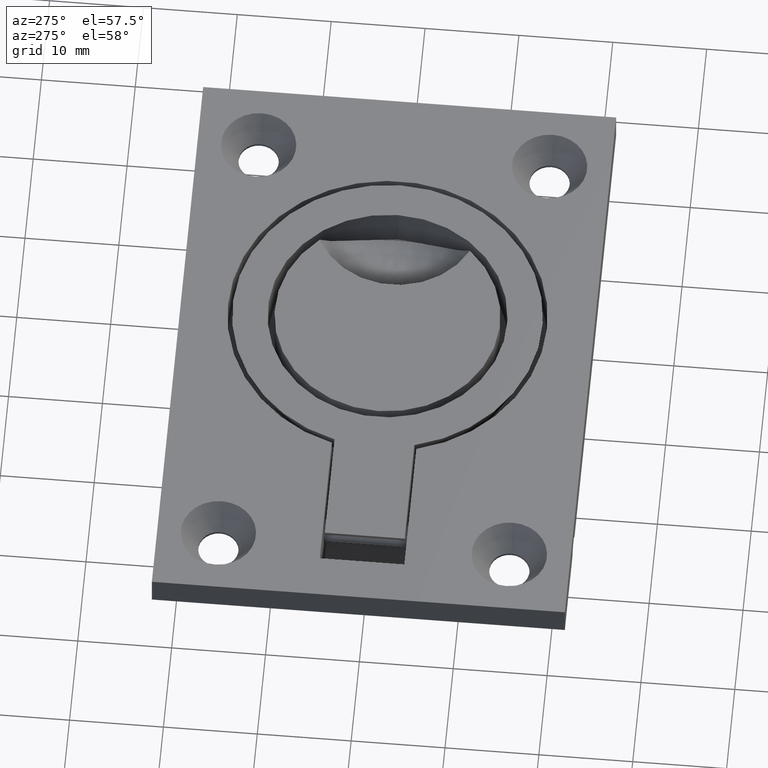
[diagram: clean part render]
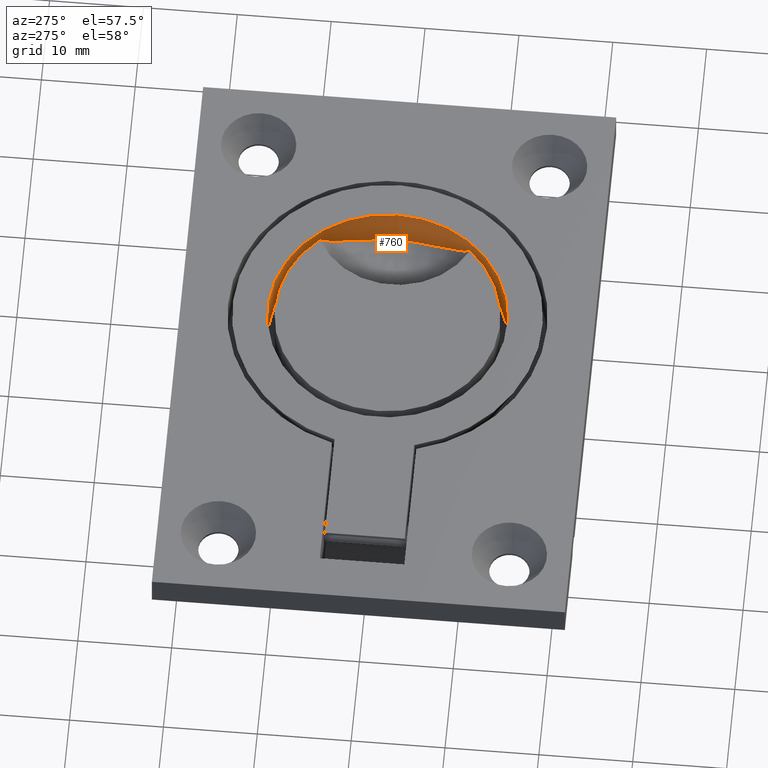
[diagram: same view with one face highlighted and labeled with its STEP entity id]
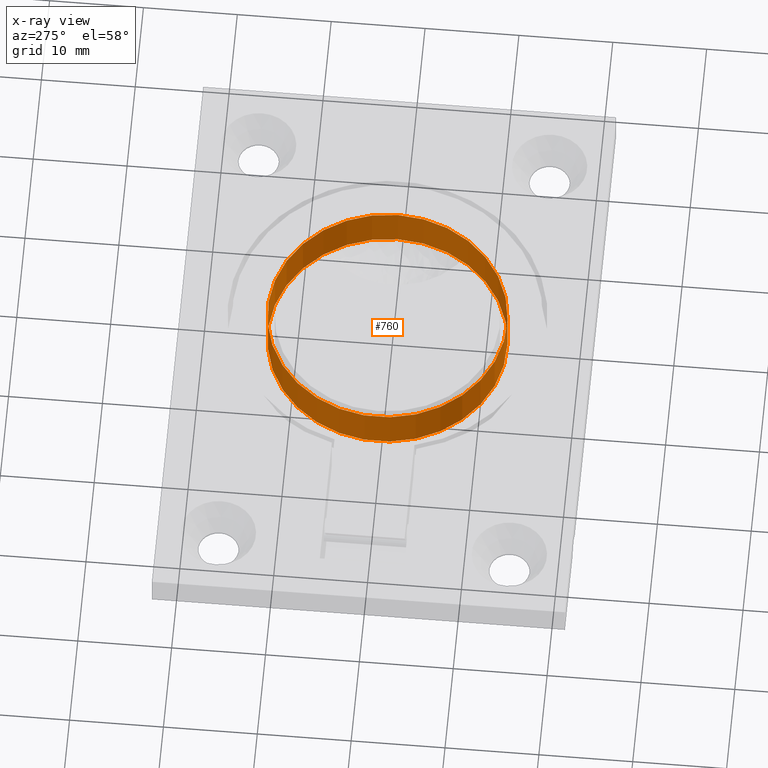
[diagram: x-ray of the same camera — body ghosted, the highlighted face saturated]
A machine part, auxiliary view. The second image highlights one B-rep face of the part: STEP entity #760.
The next image is the same camera in x-ray: the body ghosted, the highlighted face saturated — about 0% of this face is hidden behind the body in this view.
In plain terms, the highlighted cylindrical surface (bore or boss wall) has radius 12.75 mm, axis along (0, 0, -1).
Its self-contained STEP definition (entity closure, byte-faithful):
#52=FACE_BOUND('',#203,.T.);
#131=FACE_OUTER_BOUND('',#202,.T.);
#202=EDGE_LOOP('',(#697));
#203=EDGE_LOOP('',(#698));
#241=CIRCLE('',#843,12.75);
#243=CIRCLE('',#847,12.75);
#410=VERTEX_POINT('',#1351);
#412=VERTEX_POINT('',#1357);
#506=EDGE_CURVE('',#410,#410,#241,.T.);
#508=EDGE_CURVE('',#412,#412,#243,.T.);
#697=ORIENTED_EDGE('',*,*,#508,.F.);
#698=ORIENTED_EDGE('',*,*,#506,.F.);
#714=CYLINDRICAL_SURFACE('',#848,12.75);
#760=ADVANCED_FACE('',(#131,#52),#714,.F.);
#843=AXIS2_PLACEMENT_3D('',#1352,#1056,#1057);
#847=AXIS2_PLACEMENT_3D('',#1358,#1064,#1065);
#848=AXIS2_PLACEMENT_3D('',#1359,#1066,#1067);
#1056=DIRECTION('center_axis',(0.,0.,-1.));
#1057=DIRECTION('ref_axis',(-1.,0.,0.));
#1064=DIRECTION('center_axis',(0.,0.,1.));
#1065=DIRECTION('ref_axis',(-1.,0.,0.));
#1066=DIRECTION('center_axis',(0.,0.,-1.));
#1067=DIRECTION('ref_axis',(-1.,0.,0.));
#1351=CARTESIAN_POINT('',(17.,1.56142466891288E-15,3.5));
#1352=CARTESIAN_POINT('Origin',(4.25,0.,3.5));
#1357=CARTESIAN_POINT('',(17.,1.56142466891288E-15,-1.3));
#1358=CARTESIAN_POINT('Origin',(4.25,0.,-1.3));
#1359=CARTESIAN_POINT('Origin',(4.25,0.,3.5));